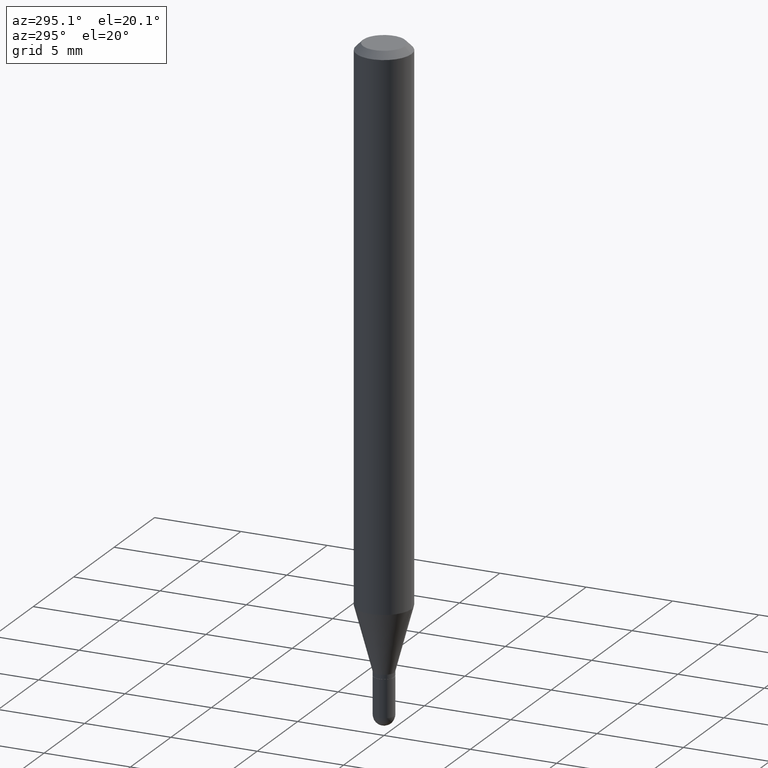
[diagram: clean part render]
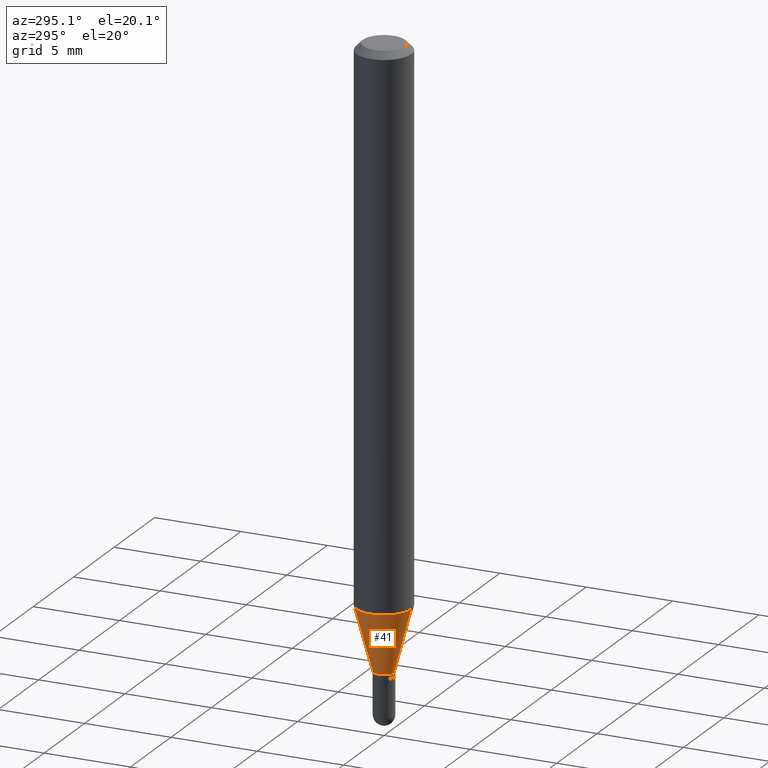
[diagram: same view with one face highlighted and labeled with its STEP entity id]
A machine part, auxiliary view. The second image highlights one B-rep face of the part: STEP entity #41.
In plain terms, the highlighted conical surface has half-angle 15 deg.
Its self-contained STEP definition (entity closure, byte-faithful):
#17 = VECTOR ( 'NONE', #174, 39.37007874015748143 ) ;
#25 = CONICAL_SURFACE ( 'NONE', #421, 0.02345000000000019638, 0.2617993877991502960 ) ;
#41 = ADVANCED_FACE ( 'NONE', ( #65 ), #25, .T. ) ;
#60 = DIRECTION ( 'NONE',  ( -6.982962677686265922E-15, -1.000000000000000000, 0.000000000000000000 ) ) ;
#62 = AXIS2_PLACEMENT_3D ( 'NONE', #117, #455, #72 ) ;
#65 = FACE_OUTER_BOUND ( 'NONE', #489, .T. ) ;
#72 = DIRECTION ( 'NONE',  ( -6.982962677686265922E-15, -1.000000000000000000, 0.000000000000000000 ) ) ;
#73 = EDGE_CURVE ( 'NONE', #436, #407, #440, .T. ) ;
#74 = CARTESIAN_POINT ( 'NONE',  ( 4.440892098500924943E-16, 0.06249999999999566319, -1.235263415964437339 ) ) ;
#100 = DIRECTION ( 'NONE',  ( -2.445362566006528973E-29, 3.491633480825727200E-15, 1.000000000000000000 ) ) ;
#109 = CARTESIAN_POINT ( 'NONE',  ( -1.637504747917105586E-16, -0.02345000000000501891, -1.381000000000000449 ) ) ;
#117 = CARTESIAN_POINT ( 'NONE',  ( 3.377045703655016887E-29, -4.821945837020329725E-15, -1.381000000000000449 ) ) ;
#151 = CARTESIAN_POINT ( 'NONE',  ( 3.020666916556785536E-29, -4.313087100820585509E-15, -1.235263415964436895 ) ) ;
#154 = CARTESIAN_POINT ( 'NONE',  ( -4.364351673553615941E-16, -0.06250000000000432987, -1.235263415964436673 ) ) ;
#157 = ORIENTED_EDGE ( 'NONE', *, *, #73, .F. ) ;
#174 = DIRECTION ( 'NONE',  ( 1.839019923739600710E-15, 0.2588190451025250138, 0.9659258262890670910 ) ) ;
#196 = LINE ( 'NONE', #313, #469 ) ;
#200 = ORIENTED_EDGE ( 'NONE', *, *, #507, .T. ) ;
#242 = DIRECTION ( 'NONE',  ( -2.445362566006528973E-29, 3.491633480825727200E-15, 1.000000000000000000 ) ) ;
#300 = ORIENTED_EDGE ( 'NONE', *, *, #439, .F. ) ;
#313 = CARTESIAN_POINT ( 'NONE',  ( -1.637504747917105586E-16, -0.02345000000000501891, -1.381000000000000449 ) ) ;
#327 = CIRCLE ( 'NONE', #62, 0.02345000000000019638 ) ;
#369 = VERTEX_POINT ( 'NONE', #109 ) ;
#391 = DIRECTION ( 'NONE',  ( -6.982962677686265922E-15, -1.000000000000000000, 4.370956789862821150E-15 ) ) ;
#406 = EDGE_CURVE ( 'NONE', #436, #369, #327, .T. ) ;
#407 = VERTEX_POINT ( 'NONE', #74 ) ;
#412 = ORIENTED_EDGE ( 'NONE', *, *, #406, .T. ) ;
#413 = CARTESIAN_POINT ( 'NONE',  ( 3.377045703655016887E-29, -4.821945837020329725E-15, -1.381000000000000449 ) ) ;
#421 = AXIS2_PLACEMENT_3D ( 'NONE', #413, #100, #60 ) ;
#423 = CARTESIAN_POINT ( 'NONE',  ( 3.053557406929357877E-16, 0.02344999999999537385, -1.381000000000000449 ) ) ;
#427 = CIRCLE ( 'NONE', #498, 0.06250000000000000000 ) ;
#432 = CARTESIAN_POINT ( 'NONE',  ( 1.666222715357786128E-16, 0.02344999999999537385, -1.381000000000000449 ) ) ;
#436 = VERTEX_POINT ( 'NONE', #423 ) ;
#439 = EDGE_CURVE ( 'NONE', #407, #441, #427, .T. ) ;
#440 = LINE ( 'NONE', #432, #17 ) ;
#441 = VERTEX_POINT ( 'NONE', #154 ) ;
#455 = DIRECTION ( 'NONE',  ( -2.445362566006528973E-29, 3.491633480825727200E-15, 1.000000000000000000 ) ) ;
#461 = DIRECTION ( 'NONE',  ( -1.807323732225330534E-15, -0.2588190451025182415, 0.9659258262890689783 ) ) ;
#469 = VECTOR ( 'NONE', #461, 39.37007874015748143 ) ;
#489 = EDGE_LOOP ( 'NONE', ( #157, #412, #200, #300 ) ) ;
#498 = AXIS2_PLACEMENT_3D ( 'NONE', #151, #242, #391 ) ;
#507 = EDGE_CURVE ( 'NONE', #369, #441, #196, .T. ) ;